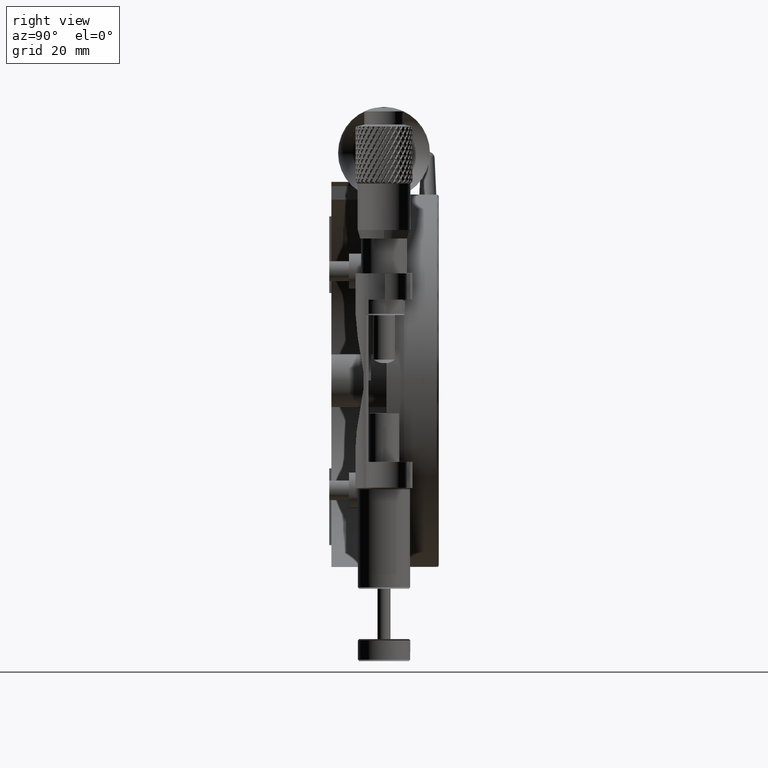
[diagram: clean part render]
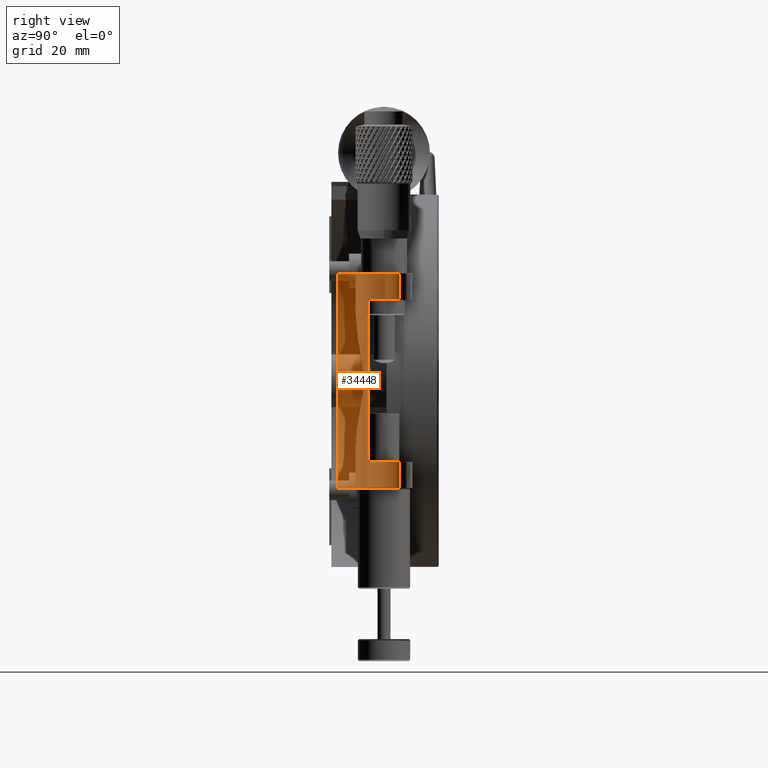
[diagram: same view with one face highlighted and labeled with its STEP entity id]
A machine part, right view. The second image highlights one B-rep face of the part: STEP entity #34448.
In plain terms, the highlighted planar face has unit normal (-1, 0, 0).
Its self-contained STEP definition (entity closure, byte-faithful):
#2342 = CARTESIAN_POINT ( 'NONE',  ( 56.00000000000000000, 8.999999999999989342, -24.50000000000000000 ) ) ;
#3959 = DIRECTION ( 'NONE',  ( -0.000000000000000000, -1.000000000000000000, 0.000000000000000000 ) ) ;
#6225 = CARTESIAN_POINT ( 'NONE',  ( 56.00000000000000000, 16.00000000000000000, -24.50000000000000000 ) ) ;
#8435 = VECTOR ( 'NONE', #75627, 1000.000000000000000 ) ;
#8460 = DIRECTION ( 'NONE',  ( -1.000000000000000000, 0.000000000000000000, 0.000000000000000000 ) ) ;
#9995 = FACE_OUTER_BOUND ( 'NONE', #21921, .T. ) ;
#10843 = EDGE_CURVE ( 'NONE', #31511, #13204, #65741, .T. ) ;
#12291 = ORIENTED_EDGE ( 'NONE', *, *, #10843, .F. ) ;
#12686 = CARTESIAN_POINT ( 'NONE',  ( 56.00000000000000000, 1.913999999999999924, 24.50000000000000355 ) ) ;
#12792 = VECTOR ( 'NONE', #59604, 1000.000000000000000 ) ;
#13204 = VERTEX_POINT ( 'NONE', #48449 ) ;
#15016 = LINE ( 'NONE', #2342, #12792 ) ;
#15758 = VECTOR ( 'NONE', #55676, 1000.000000000000000 ) ;
#20827 = LINE ( 'NONE', #21241, #73915 ) ;
#21241 = CARTESIAN_POINT ( 'NONE',  ( 56.00000000000000000, 1.913999999999999924, -18.49999999999999645 ) ) ;
#21921 = EDGE_LOOP ( 'NONE', ( #27630, #61464, #12291, #68830, #72216, #74757, #73750, #71731 ) ) ;
#22259 = LINE ( 'NONE', #73590, #74960 ) ;
#23318 = VERTEX_POINT ( 'NONE', #31561 ) ;
#23902 = DIRECTION ( 'NONE',  ( 0.000000000000000000, 0.000000000000000000, 1.000000000000000000 ) ) ;
#24309 = LINE ( 'NONE', #49931, #8435 ) ;
#24798 = CARTESIAN_POINT ( 'NONE',  ( 56.00000000000000000, 9.000000000000001776, -18.50000000000000000 ) ) ;
#27630 = ORIENTED_EDGE ( 'NONE', *, *, #80321, .T. ) ;
#31511 = VERTEX_POINT ( 'NONE', #6225 ) ;
#31561 = CARTESIAN_POINT ( 'NONE',  ( 56.00000000000000000, 9.000000000000001776, 18.50000000000000000 ) ) ;
#32581 = VECTOR ( 'NONE', #52708, 1000.000000000000000 ) ;
#34448 = ADVANCED_FACE ( 'NONE', ( #9995 ), #74788, .T. ) ;
#34544 = EDGE_CURVE ( 'NONE', #74235, #31511, #15016, .T. ) ;
#35731 = VERTEX_POINT ( 'NONE', #12686 ) ;
#35908 = CARTESIAN_POINT ( 'NONE',  ( 56.00000000000000000, 1.914000000000000146, 24.50000000000000000 ) ) ;
#38067 = EDGE_CURVE ( 'NONE', #75053, #23318, #62464, .T. ) ;
#39858 = EDGE_CURVE ( 'NONE', #35731, #74235, #62809, .T. ) ;
#40113 = CARTESIAN_POINT ( 'NONE',  ( 56.00000000000000000, 16.00000000000000000, 18.50000000000000000 ) ) ;
#44237 = EDGE_CURVE ( 'NONE', #35731, #51573, #22259, .T. ) ;
#45869 = CARTESIAN_POINT ( 'NONE',  ( 56.00000000000000000, 16.00000000000000000, 24.50000000000000000 ) ) ;
#48449 = CARTESIAN_POINT ( 'NONE',  ( 56.00000000000000000, 16.00000000000000000, -18.49999999999999645 ) ) ;
#49270 = LINE ( 'NONE', #45869, #55346 ) ;
#49931 = CARTESIAN_POINT ( 'NONE',  ( 56.00000000000000000, 9.000000000000001776, 24.50000000000000000 ) ) ;
#51573 = VERTEX_POINT ( 'NONE', #82289 ) ;
#52708 = DIRECTION ( 'NONE',  ( 0.000000000000000000, 0.000000000000000000, 1.000000000000000000 ) ) ;
#55346 = VECTOR ( 'NONE', #77468, 1000.000000000000000 ) ;
#55676 = DIRECTION ( 'NONE',  ( -0.000000000000000000, -0.000000000000000000, -1.000000000000000000 ) ) ;
#58688 = EDGE_CURVE ( 'NONE', #74426, #13204, #20827, .T. ) ;
#59604 = DIRECTION ( 'NONE',  ( -0.000000000000000000, 1.000000000000000000, 0.000000000000000000 ) ) ;
#61464 = ORIENTED_EDGE ( 'NONE', *, *, #58688, .T. ) ;
#62464 = LINE ( 'NONE', #82299, #73515 ) ;
#62809 = LINE ( 'NONE', #35908, #15758 ) ;
#65741 = LINE ( 'NONE', #72898, #32581 ) ;
#68830 = ORIENTED_EDGE ( 'NONE', *, *, #34544, .F. ) ;
#68876 = CARTESIAN_POINT ( 'NONE',  ( 56.00000000000000000, 1.913999999999999924, 24.50000000000000000 ) ) ;
#71731 = ORIENTED_EDGE ( 'NONE', *, *, #38067, .T. ) ;
#72216 = ORIENTED_EDGE ( 'NONE', *, *, #39858, .F. ) ;
#72898 = CARTESIAN_POINT ( 'NONE',  ( 56.00000000000000000, 16.00000000000000000, 24.50000000000000000 ) ) ;
#73186 = DIRECTION ( 'NONE',  ( -0.000000000000000000, 1.000000000000000000, 0.000000000000000000 ) ) ;
#73515 = VECTOR ( 'NONE', #3959, 1000.000000000000000 ) ;
#73590 = CARTESIAN_POINT ( 'NONE',  ( 56.00000000000000000, 8.999999999999989342, 24.50000000000000000 ) ) ;
#73750 = ORIENTED_EDGE ( 'NONE', *, *, #78716, .T. ) ;
#73915 = VECTOR ( 'NONE', #79695, 1000.000000000000000 ) ;
#74235 = VERTEX_POINT ( 'NONE', #79535 ) ;
#74426 = VERTEX_POINT ( 'NONE', #24798 ) ;
#74757 = ORIENTED_EDGE ( 'NONE', *, *, #44237, .T. ) ;
#74788 = PLANE ( 'NONE',  #82676 ) ;
#74960 = VECTOR ( 'NONE', #73186, 1000.000000000000000 ) ;
#75053 = VERTEX_POINT ( 'NONE', #40113 ) ;
#75627 = DIRECTION ( 'NONE',  ( -0.000000000000000000, -0.000000000000000000, -1.000000000000000000 ) ) ;
#77468 = DIRECTION ( 'NONE',  ( -0.000000000000000000, -0.000000000000000000, -1.000000000000000000 ) ) ;
#78716 = EDGE_CURVE ( 'NONE', #51573, #75053, #49270, .T. ) ;
#79535 = CARTESIAN_POINT ( 'NONE',  ( 56.00000000000000000, 1.913999999999999924, -24.50000000000000355 ) ) ;
#79695 = DIRECTION ( 'NONE',  ( 0.000000000000000000, 1.000000000000000000, -0.000000000000000000 ) ) ;
#80321 = EDGE_CURVE ( 'NONE', #23318, #74426, #24309, .T. ) ;
#82289 = CARTESIAN_POINT ( 'NONE',  ( 56.00000000000000000, 16.00000000000000000, 24.50000000000000355 ) ) ;
#82299 = CARTESIAN_POINT ( 'NONE',  ( 56.00000000000000000, 1.913999999999999924, 18.50000000000000000 ) ) ;
#82676 = AXIS2_PLACEMENT_3D ( 'NONE', #68876, #8460, #23902 ) ;